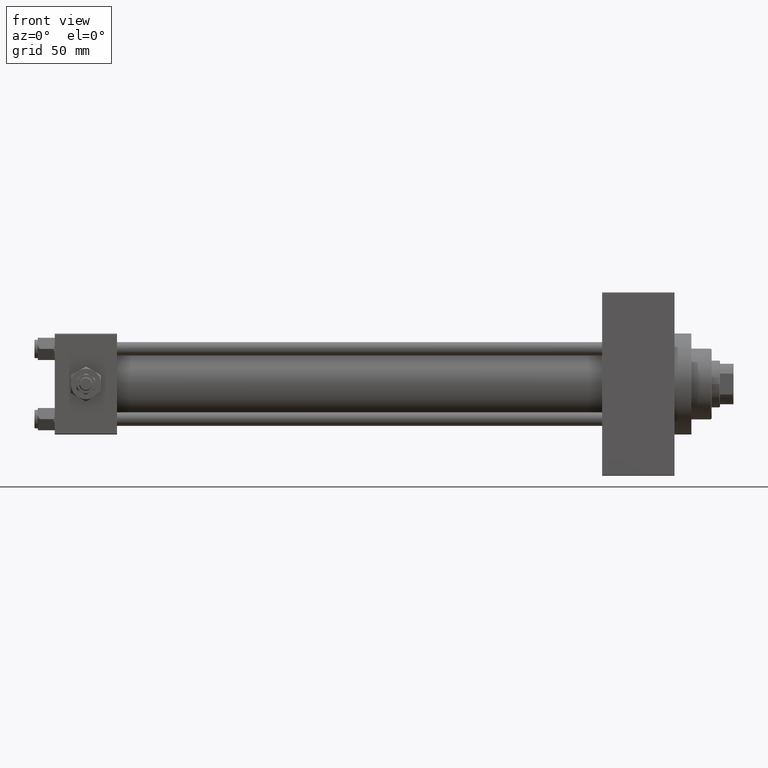
[diagram: clean part render]
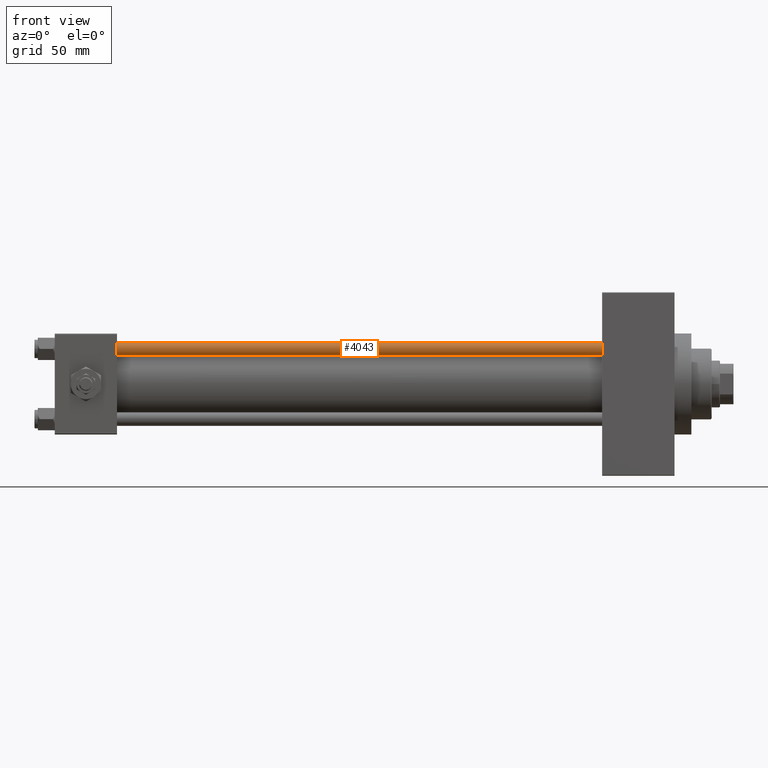
[diagram: same view with one face highlighted and labeled with its STEP entity id]
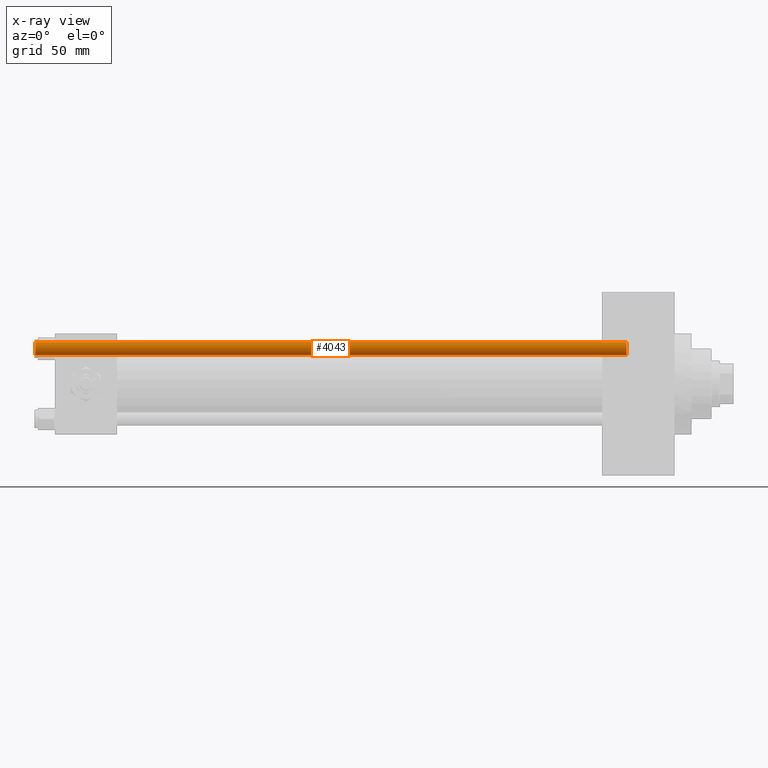
[diagram: x-ray of the same camera — body ghosted, the highlighted face saturated]
A machine part, front view. The second image highlights one B-rep face of the part: STEP entity #4043.
The next image is the same camera in x-ray: the body ghosted, the highlighted face saturated — about 0% of this face is hidden behind the body in this view.
In plain terms, the highlighted cylindrical surface (edge-blend (fillet) strip) has radius 4 mm, axis along (1, 0, 0).
Its self-contained STEP definition (entity closure, byte-faithful):
#170 = VECTOR ( 'NONE', #28742, 1000.000000000000000 ) ;
#1746 = DIRECTION ( 'NONE',  ( -0.000000000000000000, -0.000000000000000000, -1.000000000000000000 ) ) ;
#2118 = VERTEX_POINT ( 'NONE', #23185 ) ;
#3067 = CIRCLE ( 'NONE', #14176, 4.000000000000000000 ) ;
#4043 = ADVANCED_FACE ( 'NONE', ( #12955 ), #4760, .T. ) ;
#4760 = CYLINDRICAL_SURFACE ( 'NONE', #8358, 4.000000000000000000 ) ;
#5421 = AXIS2_PLACEMENT_3D ( 'NONE', #13569, #21053, #21297 ) ;
#5481 = LINE ( 'NONE', #9472, #44221 ) ;
#8358 = AXIS2_PLACEMENT_3D ( 'NONE', #32394, #16692, #20191 ) ;
#9472 = CARTESIAN_POINT ( 'NONE',  ( 4.000000000000000000, 4.898587196589412829E-16, 352.0000000000000000 ) ) ;
#9693 = DIRECTION ( 'NONE',  ( 1.000000000000000000, 0.000000000000000000, 0.000000000000000000 ) ) ;
#12955 = FACE_OUTER_BOUND ( 'NONE', #47302, .T. ) ;
#13052 = CARTESIAN_POINT ( 'NONE',  ( -4.000000000000000000, 0.000000000000000000, 352.0000000000000000 ) ) ;
#13569 = CARTESIAN_POINT ( 'NONE',  ( 0.000000000000000000, 0.000000000000000000, 351.5000000000000000 ) ) ;
#14176 = AXIS2_PLACEMENT_3D ( 'NONE', #18144, #36827, #9693 ) ;
#15201 = EDGE_CURVE ( 'NONE', #20061, #2118, #3067, .T. ) ;
#16692 = DIRECTION ( 'NONE',  ( -0.000000000000000000, -0.000000000000000000, -1.000000000000000000 ) ) ;
#17283 = LINE ( 'NONE', #13052, #170 ) ;
#17642 = ORIENTED_EDGE ( 'NONE', *, *, #21931, .T. ) ;
#18144 = CARTESIAN_POINT ( 'NONE',  ( 0.000000000000000000, 0.000000000000000000, 0.5000000000000004441 ) ) ;
#18334 = ORIENTED_EDGE ( 'NONE', *, *, #30577, .T. ) ;
#20061 = VERTEX_POINT ( 'NONE', #23704 ) ;
#20191 = DIRECTION ( 'NONE',  ( -1.000000000000000000, 0.000000000000000000, 0.000000000000000000 ) ) ;
#21053 = DIRECTION ( 'NONE',  ( 0.000000000000000000, 0.000000000000000000, -1.000000000000000000 ) ) ;
#21297 = DIRECTION ( 'NONE',  ( 1.000000000000000000, 0.000000000000000000, 0.000000000000000000 ) ) ;
#21931 = EDGE_CURVE ( 'NONE', #36307, #20061, #5481, .T. ) ;
#21938 = CARTESIAN_POINT ( 'NONE',  ( 4.000000000000000000, 4.898587196589412829E-16, 351.5000000000000000 ) ) ;
#23185 = CARTESIAN_POINT ( 'NONE',  ( -4.000000000000000000, 0.000000000000000000, 0.5000000000000004441 ) ) ;
#23704 = CARTESIAN_POINT ( 'NONE',  ( 4.000000000000000000, 4.898587196589412829E-16, 0.5000000000000004441 ) ) ;
#26896 = CIRCLE ( 'NONE', #5421, 4.000000000000000000 ) ;
#28146 = CARTESIAN_POINT ( 'NONE',  ( -4.000000000000000000, 0.000000000000000000, 351.5000000000000000 ) ) ;
#28155 = ORIENTED_EDGE ( 'NONE', *, *, #40848, .F. ) ;
#28742 = DIRECTION ( 'NONE',  ( -0.000000000000000000, -0.000000000000000000, -1.000000000000000000 ) ) ;
#30577 = EDGE_CURVE ( 'NONE', #42093, #36307, #26896, .T. ) ;
#32394 = CARTESIAN_POINT ( 'NONE',  ( 0.000000000000000000, 0.000000000000000000, 352.0000000000000000 ) ) ;
#36307 = VERTEX_POINT ( 'NONE', #21938 ) ;
#36827 = DIRECTION ( 'NONE',  ( -0.000000000000000000, -0.000000000000000000, 1.000000000000000000 ) ) ;
#40504 = ORIENTED_EDGE ( 'NONE', *, *, #15201, .T. ) ;
#40848 = EDGE_CURVE ( 'NONE', #42093, #2118, #17283, .T. ) ;
#42093 = VERTEX_POINT ( 'NONE', #28146 ) ;
#44221 = VECTOR ( 'NONE', #1746, 1000.000000000000000 ) ;
#47302 = EDGE_LOOP ( 'NONE', ( #18334, #17642, #40504, #28155 ) ) ;